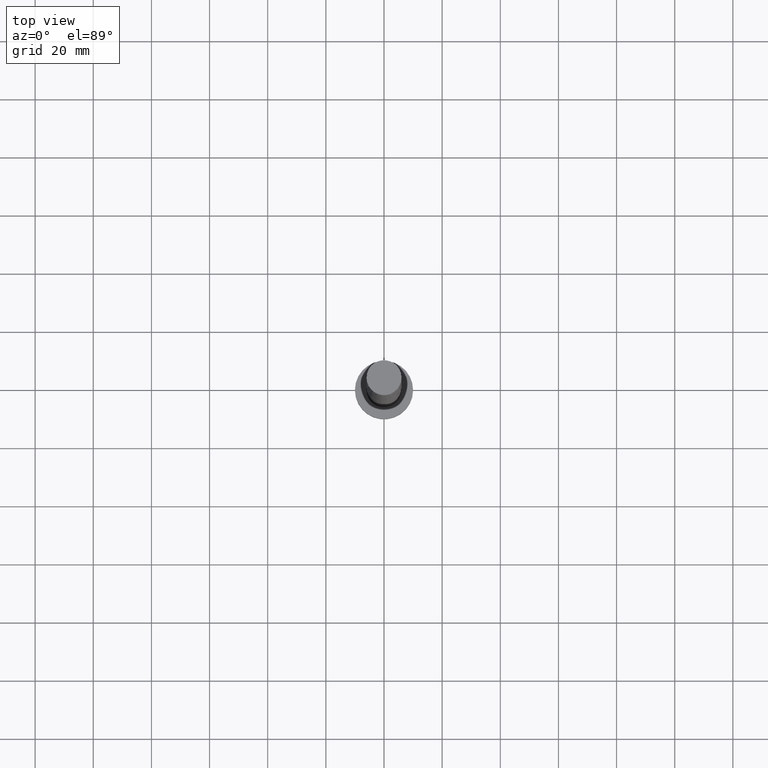
[diagram: clean part render]
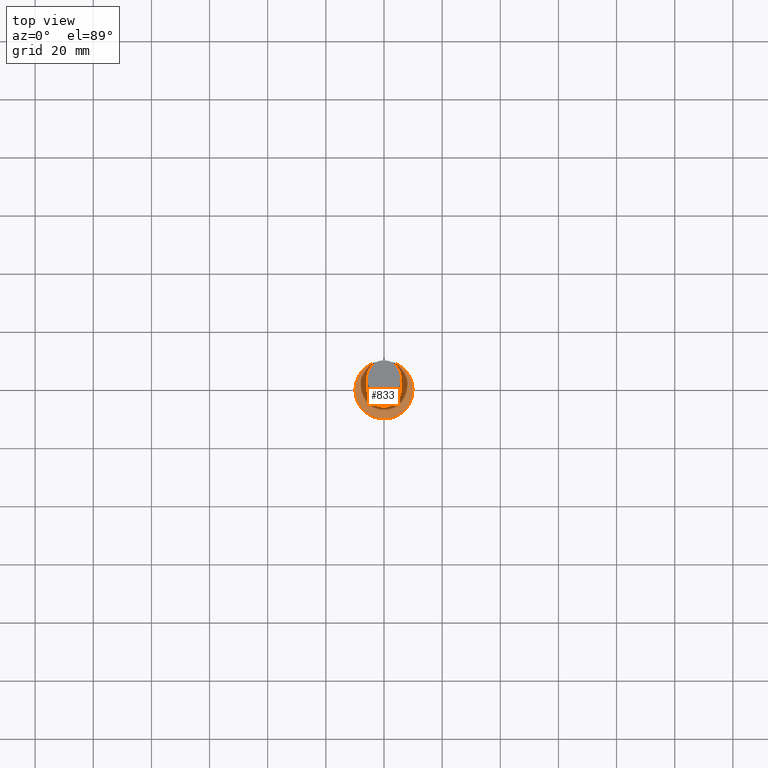
[diagram: same view with one face highlighted and labeled with its STEP entity id]
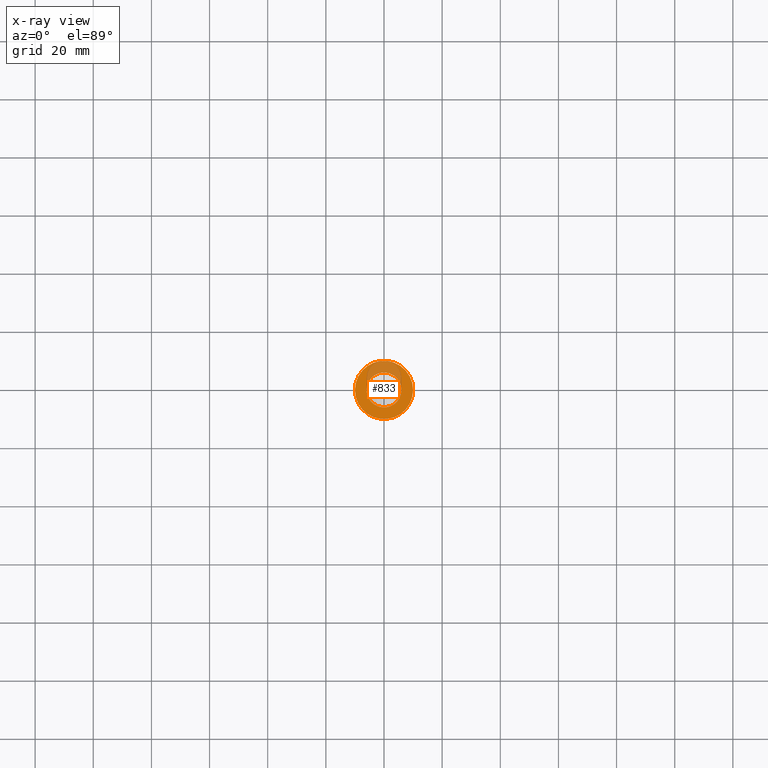
[diagram: x-ray of the same camera — body ghosted, the highlighted face saturated]
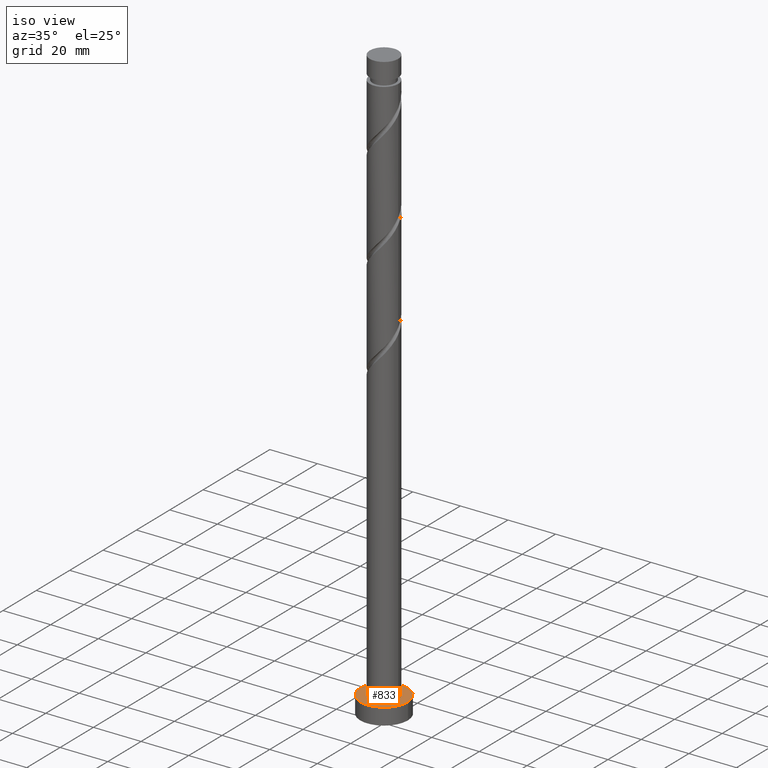
[diagram: same view with one face highlighted and labeled with its STEP entity id]
A machine part, top view. The second image highlights one B-rep face of the part: STEP entity #833.
The next image is the same camera in x-ray: the body ghosted, the highlighted face saturated — about 25% of this face is hidden behind the body in this view.
A second angle (iso view) of the same face is appended — the face is thin or edge-on in the first view.
In plain terms, the highlighted planar face has unit normal (0, 0, 1).
Its self-contained STEP definition (entity closure, byte-faithful):
#4 = CIRCLE ( 'NONE', #679, 6.000000000000000888 ) ;
#42 = DIRECTION ( 'NONE',  ( 0.000000000000000000, 0.000000000000000000, 1.000000000000000000 ) ) ;
#45 = EDGE_CURVE ( 'NONE', #1670, #1157, #1499, .T. ) ;
#81 = DIRECTION ( 'NONE',  ( 0.000000000000000000, 0.000000000000000000, 1.000000000000000000 ) ) ;
#85 = PLANE ( 'NONE',  #1550 ) ;
#94 = CARTESIAN_POINT ( 'NONE',  ( 0.000000000000000000, 0.000000000000000000, 7.000000000000000000 ) ) ;
#130 = CIRCLE ( 'NONE', #531, 6.000000000000000888 ) ;
#132 = CARTESIAN_POINT ( 'NONE',  ( 0.000000000000000000, 0.000000000000000000, 7.000000000000000000 ) ) ;
#166 = AXIS2_PLACEMENT_3D ( 'NONE', #1615, #758, #908 ) ;
#257 = ORIENTED_EDGE ( 'NONE', *, *, #45, .T. ) ;
#300 = ORIENTED_EDGE ( 'NONE', *, *, #1724, .F. ) ;
#308 = ORIENTED_EDGE ( 'NONE', *, *, #1710, .F. ) ;
#350 = DIRECTION ( 'NONE',  ( 1.000000000000000000, 0.000000000000000000, 0.000000000000000000 ) ) ;
#361 = FACE_BOUND ( 'NONE', #1452, .T. ) ;
#366 = CARTESIAN_POINT ( 'NONE',  ( 0.000000000000000000, 0.000000000000000000, 7.000000000000000000 ) ) ;
#499 = DIRECTION ( 'NONE',  ( 1.000000000000000000, 0.000000000000000000, 0.000000000000000000 ) ) ;
#520 = DIRECTION ( 'NONE',  ( 1.000000000000000000, 0.000000000000000000, -0.000000000000000000 ) ) ;
#531 = AXIS2_PLACEMENT_3D ( 'NONE', #366, #794, #350 ) ;
#545 = VERTEX_POINT ( 'NONE', #1838 ) ;
#679 = AXIS2_PLACEMENT_3D ( 'NONE', #779, #81, #499 ) ;
#758 = DIRECTION ( 'NONE',  ( 0.000000000000000000, 0.000000000000000000, 1.000000000000000000 ) ) ;
#779 = CARTESIAN_POINT ( 'NONE',  ( 0.000000000000000000, 0.000000000000000000, 7.000000000000000000 ) ) ;
#794 = DIRECTION ( 'NONE',  ( 0.000000000000000000, 0.000000000000000000, 1.000000000000000000 ) ) ;
#833 = ADVANCED_FACE ( 'NONE', ( #361, #1216 ), #85, .T. ) ;
#908 = DIRECTION ( 'NONE',  ( 1.000000000000000000, 0.000000000000000000, 0.000000000000000000 ) ) ;
#947 = DIRECTION ( 'NONE',  ( 0.000000000000000000, 0.000000000000000000, 1.000000000000000000 ) ) ;
#959 = ORIENTED_EDGE ( 'NONE', *, *, #1335, .T. ) ;
#1064 = CARTESIAN_POINT ( 'NONE',  ( 6.000000000000000888, 7.347880794884120722E-16, 7.000000000000000000 ) ) ;
#1095 = AXIS2_PLACEMENT_3D ( 'NONE', #94, #42, #1326 ) ;
#1157 = VERTEX_POINT ( 'NONE', #1467 ) ;
#1216 = FACE_OUTER_BOUND ( 'NONE', #1730, .T. ) ;
#1326 = DIRECTION ( 'NONE',  ( 1.000000000000000000, 0.000000000000000000, 0.000000000000000000 ) ) ;
#1335 = EDGE_CURVE ( 'NONE', #1157, #1670, #1755, .T. ) ;
#1452 = EDGE_LOOP ( 'NONE', ( #300, #308 ) ) ;
#1467 = CARTESIAN_POINT ( 'NONE',  ( 10.00000000000000000, 1.224646799147353256E-15, 7.000000000000000000 ) ) ;
#1494 = CARTESIAN_POINT ( 'NONE',  ( -10.00000000000000000, 0.000000000000000000, 7.000000000000000000 ) ) ;
#1499 = CIRCLE ( 'NONE', #166, 10.00000000000000000 ) ;
#1550 = AXIS2_PLACEMENT_3D ( 'NONE', #132, #947, #520 ) ;
#1615 = CARTESIAN_POINT ( 'NONE',  ( 0.000000000000000000, 0.000000000000000000, 7.000000000000000000 ) ) ;
#1670 = VERTEX_POINT ( 'NONE', #1494 ) ;
#1710 = EDGE_CURVE ( 'NONE', #1748, #545, #130, .T. ) ;
#1724 = EDGE_CURVE ( 'NONE', #545, #1748, #4, .T. ) ;
#1730 = EDGE_LOOP ( 'NONE', ( #257, #959 ) ) ;
#1748 = VERTEX_POINT ( 'NONE', #1064 ) ;
#1755 = CIRCLE ( 'NONE', #1095, 10.00000000000000000 ) ;
#1838 = CARTESIAN_POINT ( 'NONE',  ( -6.000000000000000888, 0.000000000000000000, 7.000000000000000000 ) ) ;